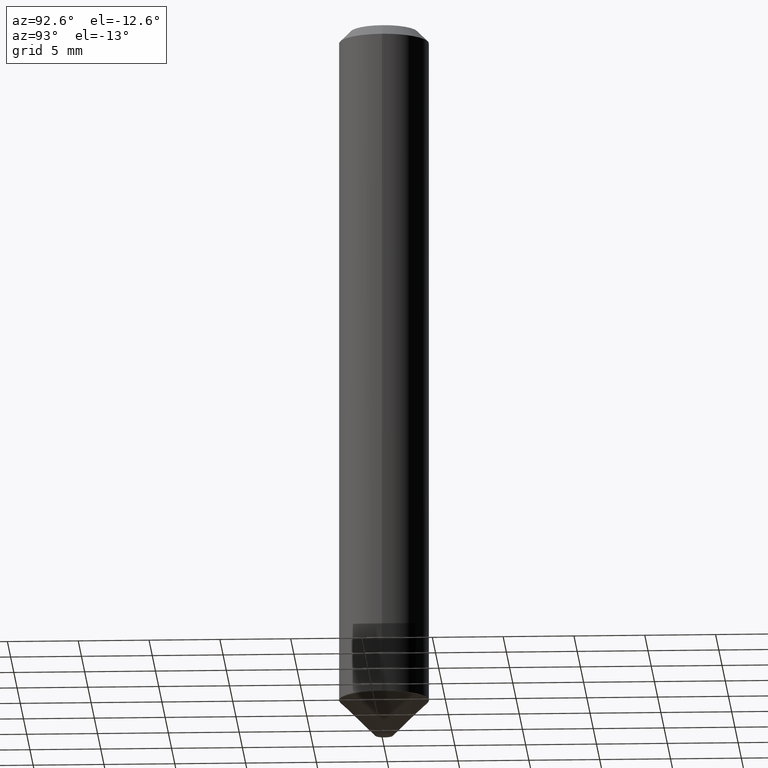
[diagram: clean part render]
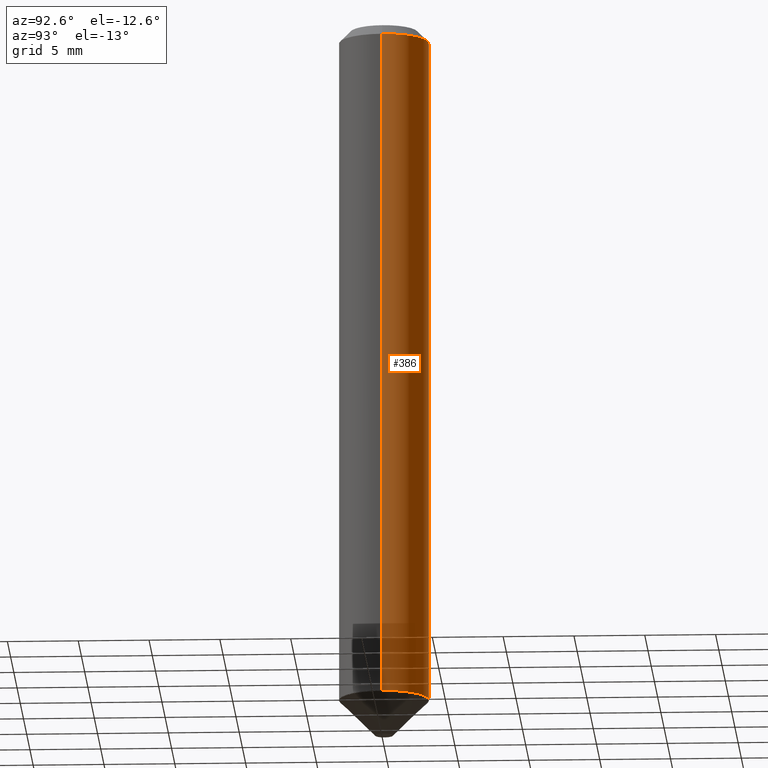
[diagram: same view with one face highlighted and labeled with its STEP entity id]
A machine part, auxiliary view. The second image highlights one B-rep face of the part: STEP entity #386.
In plain terms, the highlighted cylindrical surface (partial cylindrical patch) has radius 3.175 mm, axis along (-0, 0, 1).
Its self-contained STEP definition (entity closure, byte-faithful):
#1 = CYLINDRICAL_SURFACE ( 'NONE', #378, 0.1250000000000001388 ) ;
#30 = AXIS2_PLACEMENT_3D ( 'NONE', #395, #174, #361 ) ;
#46 = DIRECTION ( 'NONE',  ( -2.445468806185136597E-29, 3.491481338843145583E-15, 1.000000000000000000 ) ) ;
#64 = VERTEX_POINT ( 'NONE', #131 ) ;
#68 = CIRCLE ( 'NONE', #389, 0.1250000000000000278 ) ;
#87 = EDGE_CURVE ( 'NONE', #223, #64, #290, .T. ) ;
#90 = EDGE_CURVE ( 'NONE', #266, #246, #68, .T. ) ;
#94 = VECTOR ( 'NONE', #318, 39.37007874015748143 ) ;
#97 = DIRECTION ( 'NONE',  ( -2.445468806185136597E-29, 3.491481338843145583E-15, 1.000000000000000000 ) ) ;
#105 = CARTESIAN_POINT ( 'NONE',  ( 0.1250000000000002498, -7.504939137843339665E-15, -1.899499999999999966 ) ) ;
#116 = CARTESIAN_POINT ( 'NONE',  ( 7.642090019328606165E-31, -1.091087918388490760E-16, -0.03125000000000022204 ) ) ;
#131 = CARTESIAN_POINT ( 'NONE',  ( -0.1250000000000002498, -5.743890383432428727E-15, -1.899499999999999966 ) ) ;
#132 = DIRECTION ( 'NONE',  ( 1.000000000000000000, -6.982962677686266711E-15, 4.876176775795935793E-29 ) ) ;
#139 = EDGE_LOOP ( 'NONE', ( #215, #152, #306, #182 ) ) ;
#152 = ORIENTED_EDGE ( 'NONE', *, *, #303, .T. ) ;
#153 = CARTESIAN_POINT ( 'NONE',  ( -0.1250000000000000278, -2.482410377785575114E-15, -0.03125000000000022204 ) ) ;
#162 = CARTESIAN_POINT ( 'NONE',  ( 0.000000000000000000, 0.000000000000000000, 0.000000000000000000 ) ) ;
#174 = DIRECTION ( 'NONE',  ( -2.445468806185136597E-29, 3.491481338843145583E-15, 1.000000000000000000 ) ) ;
#181 = CARTESIAN_POINT ( 'NONE',  ( 0.1250000000000000278, -9.819791265496326367E-16, -0.03125000000000022204 ) ) ;
#182 = ORIENTED_EDGE ( 'NONE', *, *, #348, .F. ) ;
#184 = DIRECTION ( 'NONE',  ( -2.445468806185136877E-29, 3.491481338843145188E-15, 1.000000000000000000 ) ) ;
#215 = ORIENTED_EDGE ( 'NONE', *, *, #87, .T. ) ;
#216 = VECTOR ( 'NONE', #184, 39.37007874015748143 ) ;
#223 = VERTEX_POINT ( 'NONE', #105 ) ;
#225 = CARTESIAN_POINT ( 'NONE',  ( -0.1250000000000001388, 8.881784197001262184E-16, -6.148668862818638533E-30 ) ) ;
#246 = VERTEX_POINT ( 'NONE', #153 ) ;
#259 = LINE ( 'NONE', #225, #216 ) ;
#266 = VERTEX_POINT ( 'NONE', #181 ) ;
#290 = CIRCLE ( 'NONE', #30, 0.1250000000000002498 ) ;
#293 = FACE_OUTER_BOUND ( 'NONE', #139, .T. ) ;
#303 = EDGE_CURVE ( 'NONE', #64, #246, #259, .T. ) ;
#306 = ORIENTED_EDGE ( 'NONE', *, *, #90, .F. ) ;
#318 = DIRECTION ( 'NONE',  ( -2.445468806185136877E-29, 3.491481338843145188E-15, 1.000000000000000000 ) ) ;
#333 = DIRECTION ( 'NONE',  ( 1.000000000000000000, -6.982962677686265922E-15, 0.000000000000000000 ) ) ;
#340 = CARTESIAN_POINT ( 'NONE',  ( 0.1250000000000001388, -8.728703347107843249E-16, 6.095220969744926748E-30 ) ) ;
#348 = EDGE_CURVE ( 'NONE', #223, #266, #409, .T. ) ;
#361 = DIRECTION ( 'NONE',  ( 1.000000000000000000, -6.982962677686264344E-15, 0.000000000000000000 ) ) ;
#378 = AXIS2_PLACEMENT_3D ( 'NONE', #162, #97, #132 ) ;
#386 = ADVANCED_FACE ( 'NONE', ( #293 ), #1, .T. ) ;
#389 = AXIS2_PLACEMENT_3D ( 'NONE', #116, #46, #333 ) ;
#395 = CARTESIAN_POINT ( 'NONE',  ( 4.645167997348666620E-29, -6.632068803132554748E-15, -1.899499999999999966 ) ) ;
#409 = LINE ( 'NONE', #340, #94 ) ;